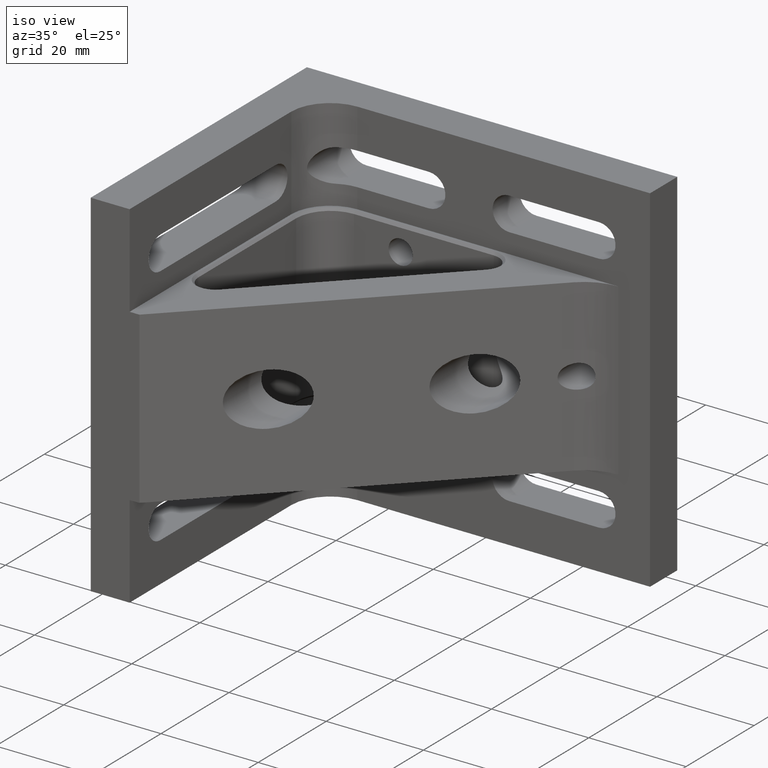
[diagram: clean part render]
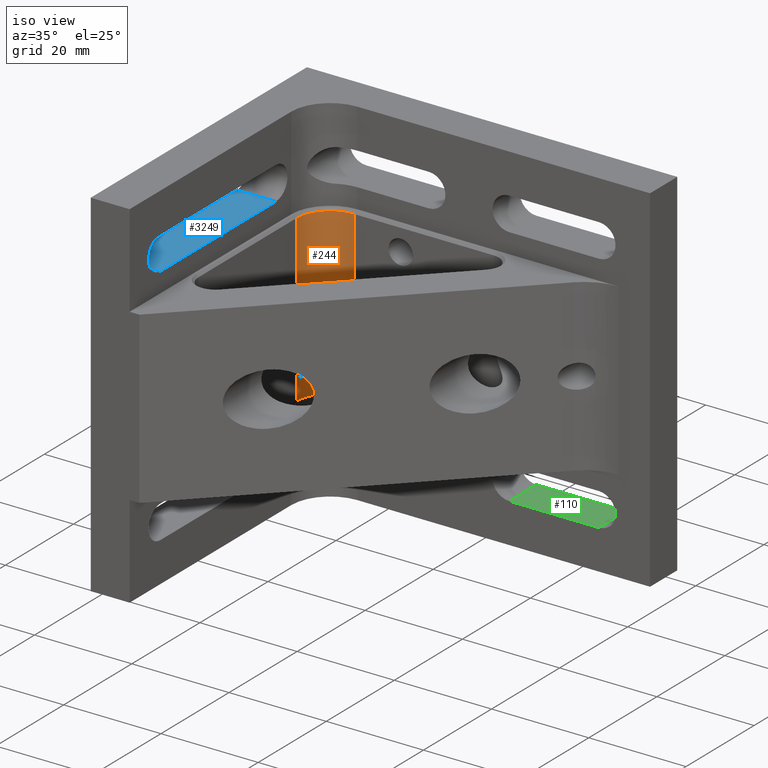
[diagram: same view with three faces highlighted in distinct colors, each labeled with its STEP entity id]
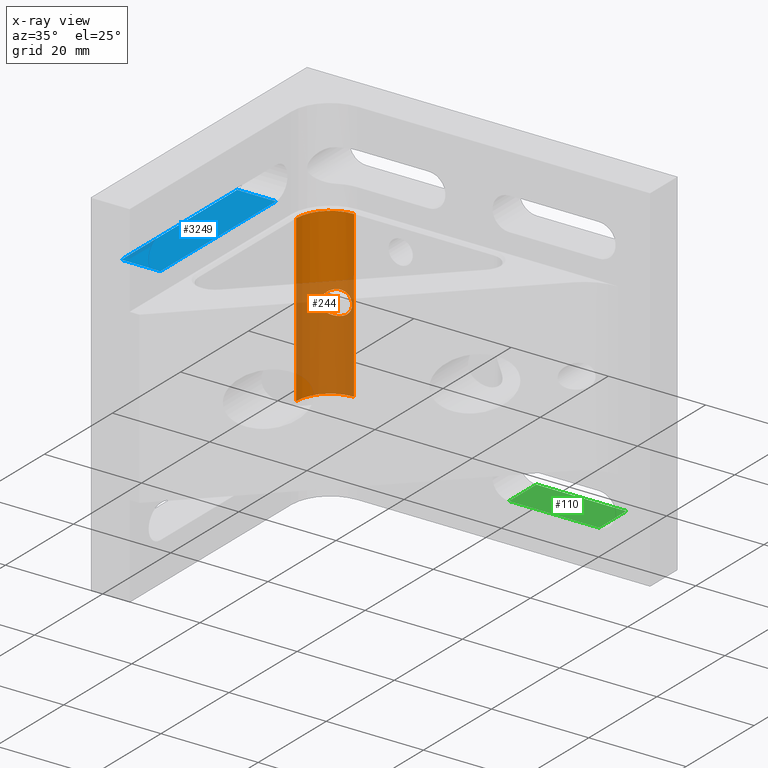
[diagram: x-ray of the same camera — body ghosted, the three highlighted faces saturated]
A machine part, iso view with three faces highlighted in distinct colors.
The next image is the same camera in x-ray (body ghosted, the three faces saturated) — at least one of them is partly hidden behind the body in this view.
Their STEP definitions:

[orange] entity #244 — the highlighted cylindrical surface (partial cylindrical patch) has radius 7 mm, axis along (-0, -0, 1).
#10 = CARTESIAN_POINT ( 'NONE',  ( 13.09999999999970299, -9.628971825521208672, -2.500000000000713207 ) ) ;
#94 = ORIENTED_EDGE ( 'NONE', *, *, #2314, .F. ) ;
#133 = CARTESIAN_POINT ( 'NONE',  ( 8.999999999999994671, -16.00000000000001066, 16.99999999999998579 ) ) ;
#137 = CARTESIAN_POINT ( 'NONE',  ( 14.58956803548983849, -9.142084462148675428, 2.014567001361049048 ) ) ;
#158 = CARTESIAN_POINT ( 'NONE',  ( 15.25546599529781133, -9.039054947018719588, 1.277463542945654673 ) ) ;
#163 = B_SPLINE_CURVE_WITH_KNOTS ( 'NONE', 3,
 ( #10, #1984, #2705, #2977, #2186, #220, #1470, #3250, #3007, #957, #945, #1707, #1455, #975, #1951, #3204, #2963, #722, #2471, #234, #2212, #3234, #1482, #2486, #2946, #2213, #1252, #2502, #1952, #2964 ),
 .UNSPECIFIED., .F., .F.,
 ( 4, 2, 2, 2, 2, 2, 2, 2, 2, 2, 2, 2, 2, 2, 4 ),
 ( 0.01061332132456668104, 0.01115935223838031461, 0.01170538315219394818, 0.01279744497982121705, 0.01388950680744848593, 0.01443553772126212123, 0.01498156863507575307, 0.01552759954888938664, 0.01607363046270302021, 0.01661966137651665204, 0.01716569229033028735, 0.01771172320414391918, 0.01825775411795755448, 0.01880378503177118632, 0.01934981594558482162 ),
 .UNSPECIFIED. ) ;
#195 = VERTEX_POINT ( 'NONE', #677 ) ;
#220 = CARTESIAN_POINT ( 'NONE',  ( 11.85905414389984180, -10.34534207513794257, -2.193164438900788049 ) ) ;
#223 = CARTESIAN_POINT ( 'NONE',  ( 15.06829993307286664, -9.061633583343319032, -1.550338470125006696 ) ) ;
#234 = CARTESIAN_POINT ( 'NONE',  ( 11.16667089702762006, -10.93479198395976937, 1.593069437857195014 ) ) ;
#237 = CARTESIAN_POINT ( 'NONE',  ( 13.87027466682627264, -9.330029865062364536, -2.383790477819748066 ) ) ;
#244 = ADVANCED_FACE ( 'NONE', ( #706, #526 ), #1221, .F. ) ;
#304 = EDGE_CURVE ( 'NONE', #2687, #2484, #163, .T. ) ;
#321 = CARTESIAN_POINT ( 'NONE',  ( 15.99999999999999289, -9.000000000000007105, -36.57600000000000051 ) ) ;
#331 = ORIENTED_EDGE ( 'NONE', *, *, #1976, .T. ) ;
#354 = VERTEX_POINT ( 'NONE', #2201 ) ;
#381 = DIRECTION ( 'NONE',  ( 1.000000000000000000, 0.000000000000000000, 0.000000000000000000 ) ) ;
#500 = LINE ( 'NONE', #3009, #3229 ) ;
#526 = FACE_OUTER_BOUND ( 'NONE', #1039, .T. ) ;
#677 = CARTESIAN_POINT ( 'NONE',  ( 15.99999999999999289, -9.000000000000007105, 16.99999999999998579 ) ) ;
#706 = FACE_BOUND ( 'NONE', #1662, .T. ) ;
#722 = CARTESIAN_POINT ( 'NONE',  ( 10.89600343590682385, -11.20835754833583131, 1.191739407814609075 ) ) ;
#753 = CARTESIAN_POINT ( 'NONE',  ( 15.99999999999999289, -16.00000000000000711, -36.57600000000000051 ) ) ;
#755 = DIRECTION ( 'NONE',  ( -0.000000000000000000, -0.000000000000000000, 1.000000000000000000 ) ) ;
#759 = AXIS2_PLACEMENT_3D ( 'NONE', #2361, #2559, #381 ) ;
#770 = CARTESIAN_POINT ( 'NONE',  ( 15.59991014289930433, -9.011443059237315367, 0.1698269791860098632 ) ) ;
#845 = CARTESIAN_POINT ( 'NONE',  ( 13.09999999999970299, -9.628971825521208672, -2.500000000000713207 ) ) ;
#870 = CARTESIAN_POINT ( 'NONE',  ( 13.86920753365758507, -9.330379074848641707, 2.384106825709254807 ) ) ;
#900 = CARTESIAN_POINT ( 'NONE',  ( 15.51650210371299821, -9.016638450496131441, 0.6620065636604909320 ) ) ;
#902 = CARTESIAN_POINT ( 'NONE',  ( 15.99999999999999289, -16.00000000000000711, 16.99999999999998579 ) ) ;
#925 = ORIENTED_EDGE ( 'NONE', *, *, #1118, .T. ) ;
#926 = EDGE_CURVE ( 'NONE', #354, #2699, #1950, .T. ) ;
#945 = CARTESIAN_POINT ( 'NONE',  ( 10.69644300318734231, -11.43099395305424970, -0.7106821797757443271 ) ) ;
#947 = CARTESIAN_POINT ( 'NONE',  ( 13.40581329935575106, -9.496355848536818911, -2.486203087936027512 ) ) ;
#957 = CARTESIAN_POINT ( 'NONE',  ( 10.75154305713397740, -11.36703926584380753, -0.8736253908354875142 ) ) ;
#959 = CARTESIAN_POINT ( 'NONE',  ( 13.09999999999970299, -9.628971825521208672, -2.500000000000713207 ) ) ;
#975 = CARTESIAN_POINT ( 'NONE',  ( 10.60056015703128196, -11.54510941470655006, 0.1924286431287265120 ) ) ;
#979 = CARTESIAN_POINT ( 'NONE',  ( 15.58321928632896736, -9.012340079508415869, -0.3336263380877022566 ) ) ;
#1008 = CARTESIAN_POINT ( 'NONE',  ( 15.25660601052823040, -9.038939813295783665, -1.275462470572027662 ) ) ;
#1039 = EDGE_LOOP ( 'NONE', ( #94, #2565, #331, #925 ) ) ;
#1118 = EDGE_CURVE ( 'NONE', #195, #1872, #3227, .T. ) ;
#1163 = CARTESIAN_POINT ( 'NONE',  ( 15.46610534029785100, -9.020081949313503600, 0.8242788330329905433 ) ) ;
#1175 = AXIS2_PLACEMENT_3D ( 'NONE', #902, #1898, #1460 ) ;
#1211 = CARTESIAN_POINT ( 'NONE',  ( 15.46703667795368276, -9.020011091851417362, -0.8216624528328149157 ) ) ;
#1221 = CYLINDRICAL_SURFACE ( 'NONE', #1672, 6.999999999999999112 ) ;
#1252 = CARTESIAN_POINT ( 'NONE',  ( 12.45163586676691558, -9.963316556591948370, 2.419802352790264788 ) ) ;
#1378 = CARTESIAN_POINT ( 'NONE',  ( 14.16710984289816011, -9.242438791114235386, 2.266477921670296158 ) ) ;
#1379 = ORIENTED_EDGE ( 'NONE', *, *, #304, .T. ) ;
#1455 = CARTESIAN_POINT ( 'NONE',  ( 10.59946186859776240, -11.54644090237429843, -0.1775876254676790056 ) ) ;
#1460 = DIRECTION ( 'NONE',  ( 1.000000000000000000, 0.000000000000000000, 0.000000000000000000 ) ) ;
#1470 = CARTESIAN_POINT ( 'NONE',  ( 11.60042463383778255, -10.54709944692289980, -2.024476017712766307 ) ) ;
#1482 = CARTESIAN_POINT ( 'NONE',  ( 11.61324962681245587, -10.54262041647238846, 2.015766360721215289 ) ) ;
#1485 = CARTESIAN_POINT ( 'NONE',  ( 13.25228693431732196, -9.559653012697857832, -2.500000000000009770 ) ) ;
#1514 = EDGE_CURVE ( 'NONE', #2484, #2687, #1955, .T. ) ;
#1532 = DIRECTION ( 'NONE',  ( -0.000000000000000000, -0.000000000000000000, 1.000000000000000000 ) ) ;
#1637 = CARTESIAN_POINT ( 'NONE',  ( 14.95716535434378613, -9.077068498455842516, 1.681728975987164310 ) ) ;
#1662 = EDGE_LOOP ( 'NONE', ( #2646, #1379 ) ) ;
#1672 = AXIS2_PLACEMENT_3D ( 'NONE', #753, #2246, #2200 ) ;
#1707 = CARTESIAN_POINT ( 'NONE',  ( 10.61961899513449481, -11.52171535987831419, -0.3603685173267825448 ) ) ;
#1709 = CARTESIAN_POINT ( 'NONE',  ( 15.60008915170307908, -9.011432813412207921, -0.1671710470350913080 ) ) ;
#1760 = CARTESIAN_POINT ( 'NONE',  ( 14.60294382941818192, -9.136607424496709484, -2.024958321040117859 ) ) ;
#1810 = LINE ( 'NONE', #321, #3232 ) ;
#1816 = CARTESIAN_POINT ( 'NONE',  ( 15.99999999999999289, -9.000000000000007105, -17.00000000000002842 ) ) ;
#1863 = CARTESIAN_POINT ( 'NONE',  ( 13.10000000000000142, -9.628971825521412953, 2.499999999999994227 ) ) ;
#1872 = VERTEX_POINT ( 'NONE', #133 ) ;
#1890 = CARTESIAN_POINT ( 'NONE',  ( 13.10000000000000142, -9.628971825521412953, 2.499999999999994227 ) ) ;
#1898 = DIRECTION ( 'NONE',  ( 0.000000000000000000, 0.000000000000000000, 1.000000000000000000 ) ) ;
#1950 = CIRCLE ( 'NONE', #759, 6.999999999999999112 ) ;
#1951 = CARTESIAN_POINT ( 'NONE',  ( 10.62183481043855160, -11.51903504305388815, 0.3751796507006610049 ) ) ;
#1952 = CARTESIAN_POINT ( 'NONE',  ( 12.93294448784398298, -9.705013081655414098, 2.499999999999995115 ) ) ;
#1955 = B_SPLINE_CURVE_WITH_KNOTS ( 'NONE', 3,
 ( #1863, #2100, #2392, #2173, #870, #1378, #3189, #137, #2887, #1637, #3172, #158, #3156, #1163, #900, #2707, #770, #1709, #979, #2965, #1211, #1971, #1008, #223, #2992, #1760, #2474, #237, #2519, #947, #1485, #959 ),
 .UNSPECIFIED., .F., .F.,
 ( 4, 2, 2, 2, 2, 2, 2, 2, 2, 2, 2, 2, 2, 2, 2, 4 ),
 ( 0.002676284156688808324, 0.003172348979681174908, 0.003668413802673541925, 0.004164478625665908942, 0.004660543448658275092, 0.005156608271650641243, 0.005652673094643009127, 0.006148737917635375277, 0.006644802740627741428, 0.007140867563620109312, 0.007636932386612475462, 0.008132997209604841612, 0.008629062032597209497, 0.009621191678581941797, 0.01011725650157431142, 0.01061332132456668104 ),
 .UNSPECIFIED. ) ;
#1971 = CARTESIAN_POINT ( 'NONE',  ( 15.33644283876151526, -9.031213380057254270, -1.129741231488691211 ) ) ;
#1976 = EDGE_CURVE ( 'NONE', #2699, #195, #1810, .T. ) ;
#1984 = CARTESIAN_POINT ( 'NONE',  ( 12.93237397603440364, -9.705272770390500625, -2.499999999999979128 ) ) ;
#2100 = CARTESIAN_POINT ( 'NONE',  ( 13.25176862879206574, -9.559888937886402260, 2.499999999999995115 ) ) ;
#2173 = CARTESIAN_POINT ( 'NONE',  ( 13.71387718588205118, -9.381782729529142273, 2.428547864786330113 ) ) ;
#2186 = CARTESIAN_POINT ( 'NONE',  ( 12.29774950105686848, -10.05660127110212620, -2.373051486041399372 ) ) ;
#2200 = DIRECTION ( 'NONE',  ( 1.000000000000000000, 0.000000000000000000, 0.000000000000000000 ) ) ;
#2201 = CARTESIAN_POINT ( 'NONE',  ( 8.999999999999994671, -16.00000000000001066, -17.00000000000002842 ) ) ;
#2212 = CARTESIAN_POINT ( 'NONE',  ( 11.27004114461641038, -10.83768217941775447, 1.710216133637414648 ) ) ;
#2213 = CARTESIAN_POINT ( 'NONE',  ( 12.30087113160920786, -10.05471659646761218, 2.373981570996802848 ) ) ;
#2246 = DIRECTION ( 'NONE',  ( -0.000000000000000000, -0.000000000000000000, 1.000000000000000000 ) ) ;
#2314 = EDGE_CURVE ( 'NONE', #354, #1872, #500, .T. ) ;
#2361 = CARTESIAN_POINT ( 'NONE',  ( 15.99999999999999289, -16.00000000000000711, -17.00000000000002842 ) ) ;
#2392 = CARTESIAN_POINT ( 'NONE',  ( 13.40496862558981483, -9.496695491812177536, 2.486299271670763922 ) ) ;
#2471 = CARTESIAN_POINT ( 'NONE',  ( 10.97925798729684566, -11.12049673580645148, 1.333448525362112891 ) ) ;
#2474 = CARTESIAN_POINT ( 'NONE',  ( 14.31819031405912490, -9.197908956566127614, -2.206611152134953180 ) ) ;
#2484 = VERTEX_POINT ( 'NONE', #1890 ) ;
#2486 = CARTESIAN_POINT ( 'NONE',  ( 11.87203317922602608, -10.34434259506869758, 2.183079975691869734 ) ) ;
#2502 = CARTESIAN_POINT ( 'NONE',  ( 12.76675061411445533, -9.788837997073127184, 2.482894343833280892 ) ) ;
#2519 = CARTESIAN_POINT ( 'NONE',  ( 13.71493482793700913, -9.381414875814808596, -2.428288023673378149 ) ) ;
#2559 = DIRECTION ( 'NONE',  ( -0.000000000000000000, -0.000000000000000000, -1.000000000000000000 ) ) ;
#2565 = ORIENTED_EDGE ( 'NONE', *, *, #926, .T. ) ;
#2646 = ORIENTED_EDGE ( 'NONE', *, *, #1514, .T. ) ;
#2687 = VERTEX_POINT ( 'NONE', #845 ) ;
#2699 = VERTEX_POINT ( 'NONE', #1816 ) ;
#2705 = CARTESIAN_POINT ( 'NONE',  ( 12.76663359616220283, -9.788879782977170763, -2.482916666544837891 ) ) ;
#2707 = CARTESIAN_POINT ( 'NONE',  ( 15.58295988752983696, -9.012354739156123173, 0.3356267338826354196 ) ) ;
#2887 = CARTESIAN_POINT ( 'NONE',  ( 14.71979758658317294, -9.117008902088054256, 1.911421272391059967 ) ) ;
#2946 = CARTESIAN_POINT ( 'NONE',  ( 12.01160410794916089, -10.24477217292384523, 2.256056255924228537 ) ) ;
#2963 = CARTESIAN_POINT ( 'NONE',  ( 10.75717253797559003, -11.36067046715716344, 0.8882584949535115015 ) ) ;
#2964 = CARTESIAN_POINT ( 'NONE',  ( 13.10000000000000142, -9.628971825521412953, 2.499999999999994227 ) ) ;
#2965 = CARTESIAN_POINT ( 'NONE',  ( 15.51710435250082476, -9.016597597062091296, -0.6597659483358623289 ) ) ;
#2977 = CARTESIAN_POINT ( 'NONE',  ( 12.45038616132466736, -9.964031623006855298, -2.419506187802663355 ) ) ;
#2992 = CARTESIAN_POINT ( 'NONE',  ( 14.95896476051899171, -9.076797957052873400, -1.679754180894481808 ) ) ;
#3007 = CARTESIAN_POINT ( 'NONE',  ( 10.95958283533749089, -11.13824140998541168, -1.335102881897131555 ) ) ;
#3009 = CARTESIAN_POINT ( 'NONE',  ( 8.999999999999994671, -16.00000000000001066, -36.57600000000000051 ) ) ;
#3156 = CARTESIAN_POINT ( 'NONE',  ( 15.33544554729576070, -9.031308093957045813, 1.131668361777330434 ) ) ;
#3172 = CARTESIAN_POINT ( 'NONE',  ( 15.06619031175823942, -9.061910466062848002, 1.553075148982978826 ) ) ;
#3189 = CARTESIAN_POINT ( 'NONE',  ( 14.31151726615886943, -9.205196845505012604, 2.193061569843594238 ) ) ;
#3204 = CARTESIAN_POINT ( 'NONE',  ( 10.70060042887095264, -11.42615348561991517, 0.7245303134581344562 ) ) ;
#3227 = CIRCLE ( 'NONE', #1175, 6.999999999999999112 ) ;
#3229 = VECTOR ( 'NONE', #755, 1000.000000000000000 ) ;
#3232 = VECTOR ( 'NONE', #1532, 1000.000000000000000 ) ;
#3234 = CARTESIAN_POINT ( 'NONE',  ( 11.49314440764360157, -10.64180172782226030, 1.921354663112329275 ) ) ;
#3250 = CARTESIAN_POINT ( 'NONE',  ( 11.14909106132770766, -10.94440208155363692, -1.594109073464934800 ) ) ;

[blue] entity #3249 — the highlighted planar face has unit normal (0, 0, -1).
#15 = VERTEX_POINT ( 'NONE', #1551 ) ;
#85 = DIRECTION ( 'NONE',  ( -2.500502307714317123E-16, 1.000000000000000000, 0.000000000000000000 ) ) ;
#177 = CARTESIAN_POINT ( 'NONE',  ( 2.510525938252075665E-15, -20.50000000000001776, 21.60000000000000497 ) ) ;
#258 = CARTESIAN_POINT ( 'NONE',  ( 76.20100000000000762, -54.50000000000001421, 21.60000000000000497 ) ) ;
#491 = PLANE ( 'NONE',  #2951 ) ;
#501 = DIRECTION ( 'NONE',  ( -1.000000000000000000, -1.224646799147352961E-16, -0.000000000000000000 ) ) ;
#554 = VERTEX_POINT ( 'NONE', #1516 ) ;
#610 = VERTEX_POINT ( 'NONE', #3092 ) ;
#758 = LINE ( 'NONE', #258, #1349 ) ;
#850 = LINE ( 'NONE', #2320, #1294 ) ;
#861 = VECTOR ( 'NONE', #1684, 1000.000000000000000 ) ;
#993 = CARTESIAN_POINT ( 'NONE',  ( 76.20100000000000762, -20.50000000000000711, 21.60000000000000497 ) ) ;
#1056 = EDGE_CURVE ( 'NONE', #610, #1362, #2412, .T. ) ;
#1240 = DIRECTION ( 'NONE',  ( -1.000000000000000000, -1.224646799147352961E-16, -0.000000000000000000 ) ) ;
#1250 = EDGE_CURVE ( 'NONE', #554, #1362, #758, .T. ) ;
#1294 = VECTOR ( 'NONE', #85, 1000.000000000000000 ) ;
#1349 = VECTOR ( 'NONE', #1240, 1000.000000000000000 ) ;
#1362 = VERTEX_POINT ( 'NONE', #2051 ) ;
#1451 = VECTOR ( 'NONE', #501, 1000.000000000000000 ) ;
#1452 = ORIENTED_EDGE ( 'NONE', *, *, #1736, .T. ) ;
#1516 = CARTESIAN_POINT ( 'NONE',  ( 8.000000000000005329, -54.50000000000002132, 21.60000000000000497 ) ) ;
#1551 = CARTESIAN_POINT ( 'NONE',  ( 7.999999999999992895, -20.50000000000000711, 21.60000000000000497 ) ) ;
#1588 = EDGE_CURVE ( 'NONE', #15, #610, #2725, .T. ) ;
#1684 = DIRECTION ( 'NONE',  ( 1.224646799147353207E-16, -1.000000000000000000, 0.000000000000000000 ) ) ;
#1700 = CARTESIAN_POINT ( 'NONE',  ( 76.20100000000000762, -20.50000000000000711, 21.60000000000000497 ) ) ;
#1713 = FACE_OUTER_BOUND ( 'NONE', #2988, .T. ) ;
#1736 = EDGE_CURVE ( 'NONE', #554, #15, #850, .T. ) ;
#2051 = CARTESIAN_POINT ( 'NONE',  ( 6.674325055353076618E-15, -54.50000000000002132, 21.60000000000000497 ) ) ;
#2320 = CARTESIAN_POINT ( 'NONE',  ( 7.999999999999992895, -20.50000000000002487, 21.60000000000000497 ) ) ;
#2412 = LINE ( 'NONE', #177, #861 ) ;
#2725 = LINE ( 'NONE', #993, #1451 ) ;
#2755 = DIRECTION ( 'NONE',  ( 0.000000000000000000, 0.000000000000000000, -1.000000000000000000 ) ) ;
#2941 = ORIENTED_EDGE ( 'NONE', *, *, #1250, .F. ) ;
#2951 = AXIS2_PLACEMENT_3D ( 'NONE', #1700, #2755, #2997 ) ;
#2988 = EDGE_LOOP ( 'NONE', ( #1452, #3108, #3026, #2941 ) ) ;
#2997 = DIRECTION ( 'NONE',  ( -1.000000000000000000, 0.000000000000000000, -0.000000000000000000 ) ) ;
#3026 = ORIENTED_EDGE ( 'NONE', *, *, #1056, .T. ) ;
#3092 = CARTESIAN_POINT ( 'NONE',  ( 2.510525938252075270E-15, -20.50000000000001421, 21.60000000000000497 ) ) ;
#3108 = ORIENTED_EDGE ( 'NONE', *, *, #1588, .T. ) ;
#3249 = ADVANCED_FACE ( 'NONE', ( #1713 ), #491, .F. ) ;

[green] entity #110 — the highlighted planar face has unit normal (0, 0, -1).
#87 = VERTEX_POINT ( 'NONE', #633 ) ;
#110 = ADVANCED_FACE ( 'NONE', ( #1894 ), #929, .F. ) ;
#184 = CARTESIAN_POINT ( 'NONE',  ( 47.20000000000000284, -63.50100000000000477, -28.40000000000000213 ) ) ;
#222 = AXIS2_PLACEMENT_3D ( 'NONE', #184, #2371, #1439 ) ;
#235 = CARTESIAN_POINT ( 'NONE',  ( 47.20000000000000284, 0.000000000000000000, -28.40000000000000213 ) ) ;
#430 = VERTEX_POINT ( 'NONE', #235 ) ;
#596 = DIRECTION ( 'NONE',  ( -0.000000000000000000, 1.000000000000000000, -0.000000000000000000 ) ) ;
#633 = CARTESIAN_POINT ( 'NONE',  ( 65.70000000000000284, 0.000000000000000000, -28.40000000000000213 ) ) ;
#929 = PLANE ( 'NONE',  #222 ) ;
#981 = VERTEX_POINT ( 'NONE', #2596 ) ;
#1033 = VECTOR ( 'NONE', #596, 1000.000000000000000 ) ;
#1094 = CARTESIAN_POINT ( 'NONE',  ( 65.70000000000000284, -63.50100000000000477, -28.40000000000000213 ) ) ;
#1113 = ORIENTED_EDGE ( 'NONE', *, *, #1348, .F. ) ;
#1124 = VERTEX_POINT ( 'NONE', #2462 ) ;
#1144 = ORIENTED_EDGE ( 'NONE', *, *, #1207, .T. ) ;
#1207 = EDGE_CURVE ( 'NONE', #87, #430, #1276, .T. ) ;
#1276 = LINE ( 'NONE', #3240, #2662 ) ;
#1348 = EDGE_CURVE ( 'NONE', #1124, #430, #3066, .T. ) ;
#1439 = DIRECTION ( 'NONE',  ( -1.000000000000000000, 0.000000000000000000, -0.000000000000000000 ) ) ;
#1505 = DIRECTION ( 'NONE',  ( -1.000000000000000000, -0.000000000000000000, -0.000000000000000000 ) ) ;
#1734 = EDGE_LOOP ( 'NONE', ( #2790, #2460, #1144, #1113 ) ) ;
#1765 = EDGE_CURVE ( 'NONE', #981, #87, #2035, .T. ) ;
#1894 = FACE_OUTER_BOUND ( 'NONE', #1734, .T. ) ;
#2035 = LINE ( 'NONE', #1094, #1033 ) ;
#2039 = DIRECTION ( 'NONE',  ( -0.000000000000000000, 1.000000000000000000, -0.000000000000000000 ) ) ;
#2119 = LINE ( 'NONE', #2677, #2799 ) ;
#2129 = EDGE_CURVE ( 'NONE', #1124, #981, #2119, .T. ) ;
#2371 = DIRECTION ( 'NONE',  ( 0.000000000000000000, 0.000000000000000000, -1.000000000000000000 ) ) ;
#2460 = ORIENTED_EDGE ( 'NONE', *, *, #1765, .T. ) ;
#2462 = CARTESIAN_POINT ( 'NONE',  ( 47.20000000000000284, -8.000000000000007105, -28.40000000000000213 ) ) ;
#2546 = VECTOR ( 'NONE', #2039, 1000.000000000000000 ) ;
#2596 = CARTESIAN_POINT ( 'NONE',  ( 65.70000000000000284, -8.000000000000000000, -28.40000000000000213 ) ) ;
#2662 = VECTOR ( 'NONE', #1505, 1000.000000000000000 ) ;
#2677 = CARTESIAN_POINT ( 'NONE',  ( 47.19999999999999574, -8.000000000000007105, -28.40000000000000213 ) ) ;
#2790 = ORIENTED_EDGE ( 'NONE', *, *, #2129, .T. ) ;
#2799 = VECTOR ( 'NONE', #3115, 1000.000000000000000 ) ;
#3066 = LINE ( 'NONE', #3098, #2546 ) ;
#3098 = CARTESIAN_POINT ( 'NONE',  ( 47.20000000000000284, -63.50100000000000477, -28.40000000000000213 ) ) ;
#3115 = DIRECTION ( 'NONE',  ( 1.000000000000000000, 1.271791404675078248E-16, 0.000000000000000000 ) ) ;
#3240 = CARTESIAN_POINT ( 'NONE',  ( 47.20000000000000284, 0.000000000000000000, -28.40000000000000213 ) ) ;